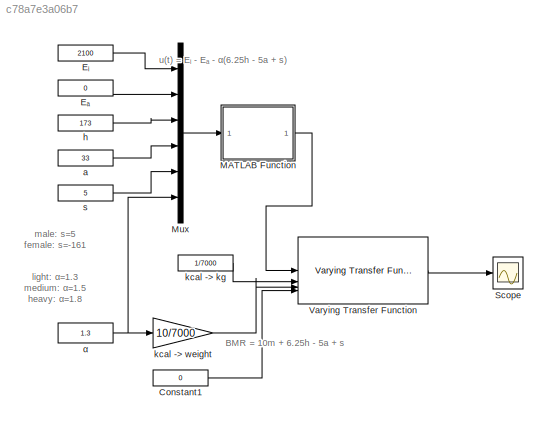
MODEL slx_c78a7e3a06b7
KIND model
CONFIG AbsTol = auto
CONFIG EnableMultiTasking = off
CONFIG FixedStep = auto
CONFIG MaxStep = auto
CONFIG MinStep = auto
CONFIG RelTol = 1e-3
CONFIG SampleTimeConstraint = Unconstrained
CONFIG SolverName = VariableStepAuto
CONFIG StartTime = 0.0
CONFIG StopTime = 3000.0
BLOCK [Constant] Constant1
  Value = 0
BLOCK [Constant] Eᵢ
  Value = 2100
BLOCK [Constant] Eₐ
  Value = 0
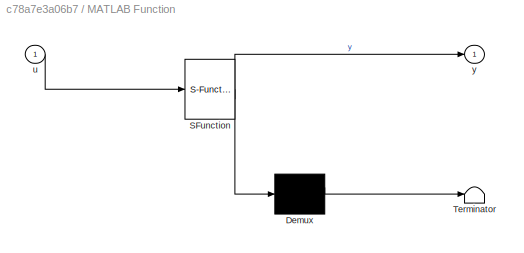
BLOCK [SubSystem] MATLAB Function
  ErrorFcn = Stateflow.Translate.translate
  LibrarySourceBlock = simulink/User-Defined\nFunctions/MATLAB Function
  PermitHierarchicalResolution = ExplicitOnly
  SFBlockType = MATLAB Function
  TreatAsAtomicUnit = on
BLOCK [Demux] MATLAB Function/ Demux 
  Outputs = 1
BLOCK [S-Function] MATLAB Function/ SFunction 
  EnableBusSupport = on
  FunctionName = sf_sfun
  PortCounts = [1 2]
  SFcnIsStateOwnerBlock = off
  SFunctionDeploymentMode = off
  Tag = Stateflow S-Function 2
BLOCK [Terminator] MATLAB Function/ Terminator 
BLOCK [Inport] MATLAB Function/u
BLOCK [Outport] MATLAB Function/y
BLOCK [Mux] Mux
  DisplayOption = bar
  Inputs = 6
BLOCK [Scope] Scope
  Floating = off
  NumInputPorts = 1
  ScopeSpecificationString = Simulink.scopes.TimeScopeBlockCfg('CurrentConfiguration', extmgr.ConfigurationSet(extmgr.Configuration('Core','General UI',true),extmgr.Configuration('Core','Source UI',true),extmgr.Configuration('Sources','WiredSimulink',true),extmgr.Configuration('Visuals','Time Domain',true,'SerializedDisplays',{struct('MinYLimReal','69.16158','MaxYLimReal','71.75982','YLabelReal','','MinYLimMag','69.16158','Ma...<+1405ch>
BLOCK [Reference] Varying Transfer Function  REF=cstblocks/Linear Parameter Varying/Varying Transfer Function
  SourceBlock = cstblocks/Linear Parameter Varying/Varying Transfer Function
  SourceType = Varying Transfer Function
BLOCK [Constant] a
  Value = 33
BLOCK [Constant] h
  Value = 173
BLOCK [Constant] kcal -> kg
  Value = 1/7000
BLOCK [Gain] kcal -> weight
  Gain = 10/7000
BLOCK [Constant] s
  Value = 5
BLOCK [Constant] α
  Value = 1.3
ANNOTATION (root): light: α=1.3 medium: α=1.5 heavy: α=1.8
ANNOTATION (root): male: s=5 female: s=-161
ANNOTATION (root): BMR = 10m + 6.25h - 5a + s
ANNOTATION (root): u(t) = Eᵢ - Eₐ - α(6.25h - 5a + s)
LINE Constant1:1 -> Varying Transfer Function:4
LINE Eᵢ:1 -> Mux:1
LINE Eₐ:1 -> Mux:2
LINE MATLAB Function:1 -> Varying Transfer Function:1
LINE Mux:1 -> MATLAB Function:1
LINE Varying Transfer Function:1 -> Scope:1
LINE a:1 -> Mux:4
LINE h:1 -> Mux:3
LINE kcal -> kg:1 -> Varying Transfer Function:2
LINE kcal -> weight:1 -> Varying Transfer Function:3
LINE s:1 -> Mux:5
NET α:1 -> Mux:6, kcal -> weight:1
note: NET lines group one-source signal fan-out (src -> all destinations, sorted); 1:1 wires keep LINE
CHART MATLAB Function states=1 transitions=1
  STATE_LABEL 'eML_blk_kernel()'
  STATE_LABEL 'SCRIPT:\nfunction y = fcn(u)\n\ny = u(1)-u(2)-u(6)*(6.25*u(3)-5*u(4)+u(5));'
CHART  states=0 transitions=0
